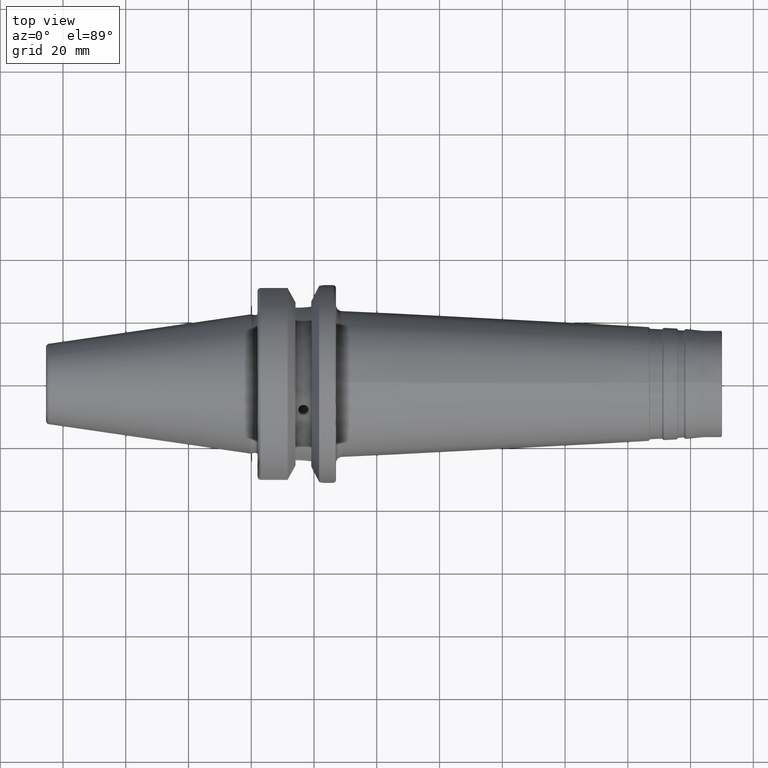
[diagram: clean part render]
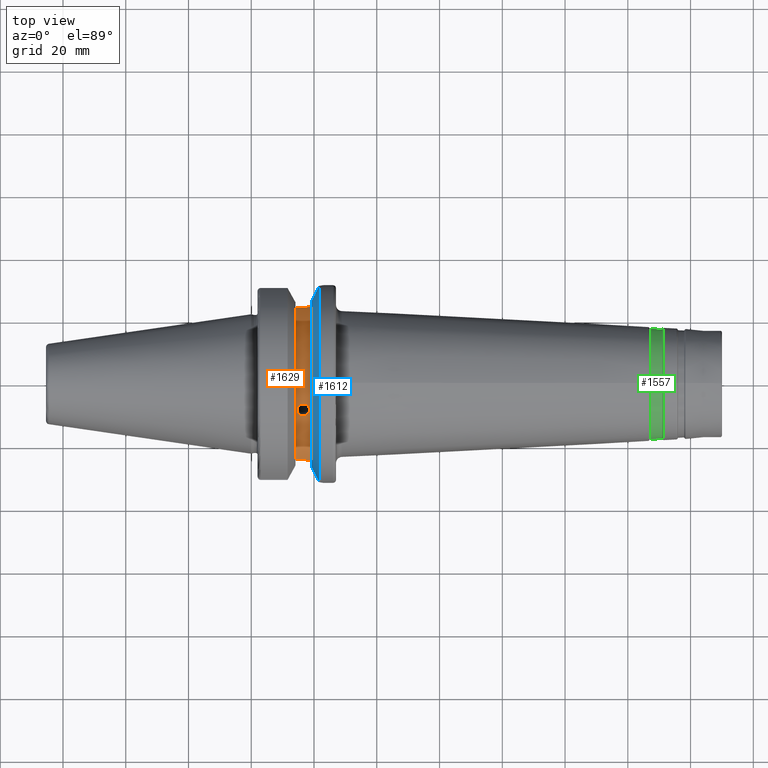
[diagram: same view with three faces highlighted in distinct colors, each labeled with its STEP entity id]
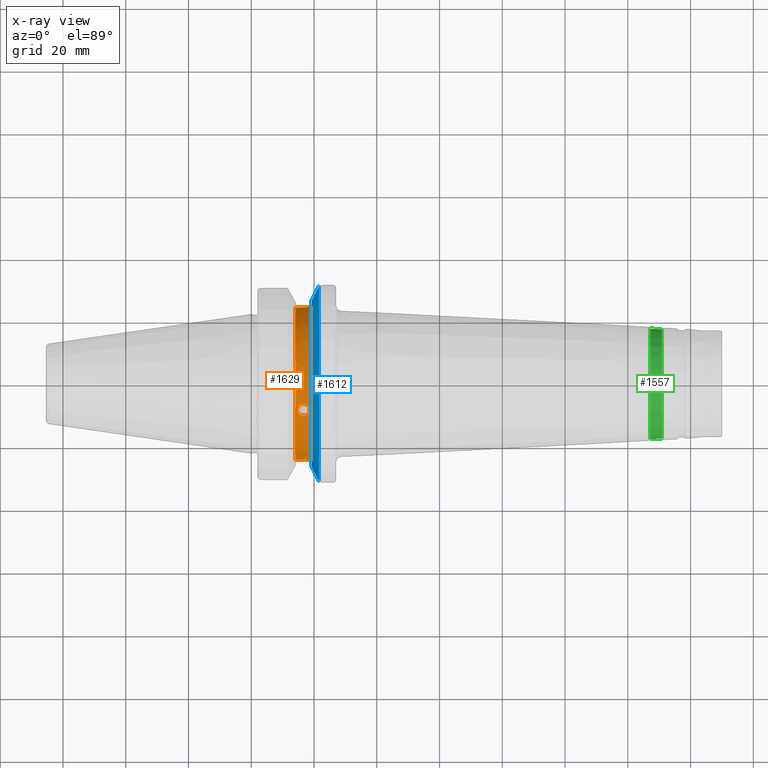
[diagram: x-ray of the same camera — body ghosted, the three highlighted faces saturated]
A machine part, top view with three faces highlighted in distinct colors.
The next image is the same camera in x-ray (body ghosted, the three faces saturated) — at least one of them is partly hidden behind the body in this view.
Their STEP definitions:

[orange] entity #1629 — the highlighted cylindrical surface (partial cylindrical patch) has radius 25.5 mm, axis along (1, 0, 0).
#110=FACE_BOUND('',#316,.T.);
#115=B_SPLINE_CURVE_WITH_KNOTS('',3,(#2716,#2717,#2718,#2719,#2720,#2721,
#2722,#2723,#2724,#2725,#2726,#2727,#2728,#2729,#2730,#2731,#2732,#2733,
#2734,#2735,#2736,#2737,#2738,#2739,#2740,#2741),.UNSPECIFIED.,.F.,.F.,
(4,2,2,2,2,2,2,2,2,2,2,2,4),(0.,0.0753706034311402,0.15074120686228,0.226111713565584,
0.301482220268888,0.376852726972193,0.452223233675497,0.527593837106637,
0.602964440537777,0.678335043968917,0.753705647400057,0.829076154103362,
0.904446660806666),.UNSPECIFIED.);
#116=B_SPLINE_CURVE_WITH_KNOTS('',3,(#2742,#2743,#2744,#2745,#2746,#2747,
#2748,#2749,#2750,#2751),.UNSPECIFIED.,.F.,.F.,(4,2,2,2,4),(0.904446660806666,
0.97981716750997,1.05518767421327,1.13055827764441,1.20592888107555),
 .UNSPECIFIED.);
#124=B_SPLINE_CURVE_WITH_KNOTS('',3,(#2919,#2920,#2921,#2922,#2923,#2924),
 .UNSPECIFIED.,.F.,.F.,(4,2,4),(0.,0.305559393991992,0.418764848000603),
 .UNSPECIFIED.);
#131=B_SPLINE_CURVE_WITH_KNOTS('',3,(#3063,#3064,#3065,#3066,#3067,#3068),
 .UNSPECIFIED.,.F.,.F.,(4,2,4),(-0.418764848000603,-0.305559393991992,0.),
 .UNSPECIFIED.);
#215=FACE_OUTER_BOUND('',#315,.T.);
#315=EDGE_LOOP('',(#1502,#1503,#1504,#1505,#1506,#1507));
#316=EDGE_LOOP('',(#1508,#1509));
#353=LINE('',#2932,#420);
#372=LINE('',#3079,#439);
#420=VECTOR('',#2245,10.);
#439=VECTOR('',#2314,10.);
#589=CIRCLE('',#1887,25.5);
#590=CIRCLE('',#1889,25.5);
#662=VERTEX_POINT('',#2713);
#663=VERTEX_POINT('',#2715);
#702=VERTEX_POINT('',#2916);
#703=VERTEX_POINT('',#2918);
#706=VERTEX_POINT('',#2931);
#733=VERTEX_POINT('',#3060);
#734=VERTEX_POINT('',#3062);
#736=VERTEX_POINT('',#3078);
#867=EDGE_CURVE('',#663,#662,#115,.T.);
#868=EDGE_CURVE('',#662,#663,#116,.T.);
#920=EDGE_CURVE('',#703,#702,#124,.T.);
#924=EDGE_CURVE('',#706,#703,#353,.T.);
#964=EDGE_CURVE('',#734,#733,#131,.T.);
#967=EDGE_CURVE('',#733,#736,#372,.T.);
#1016=EDGE_CURVE('',#736,#706,#589,.T.);
#1017=EDGE_CURVE('',#734,#702,#590,.T.);
#1502=ORIENTED_EDGE('',*,*,#920,.T.);
#1503=ORIENTED_EDGE('',*,*,#1017,.F.);
#1504=ORIENTED_EDGE('',*,*,#964,.T.);
#1505=ORIENTED_EDGE('',*,*,#967,.T.);
#1506=ORIENTED_EDGE('',*,*,#1016,.T.);
#1507=ORIENTED_EDGE('',*,*,#924,.T.);
#1508=ORIENTED_EDGE('',*,*,#867,.T.);
#1509=ORIENTED_EDGE('',*,*,#868,.T.);
#1547=CYLINDRICAL_SURFACE('',#1888,25.5);
#1629=ADVANCED_FACE('',(#215,#110),#1547,.T.);
#1887=AXIS2_PLACEMENT_3D('',#3189,#2432,#2433);
#1888=AXIS2_PLACEMENT_3D('',#3190,#2434,#2435);
#1889=AXIS2_PLACEMENT_3D('',#3191,#2436,#2437);
#2245=DIRECTION('',(1.,0.,0.));
#2314=DIRECTION('',(-1.,0.,0.));
#2432=DIRECTION('center_axis',(1.,0.,0.));
#2433=DIRECTION('ref_axis',(0.,0.,-1.));
#2434=DIRECTION('center_axis',(1.,0.,0.));
#2435=DIRECTION('ref_axis',(0.,1.,0.));
#2436=DIRECTION('center_axis',(1.,0.,0.));
#2437=DIRECTION('ref_axis',(0.,0.,-1.));
#2713=CARTESIAN_POINT('',(18.6,-8.72151365480455,23.9621618300407));
#2715=CARTESIAN_POINT('',(16.6,-10.5740324061887,23.2043064682587));
#2716=CARTESIAN_POINT('Ctrl Pts',(16.6,-10.5740324061887,23.2043064682587));
#2717=CARTESIAN_POINT('Ctrl Pts',(16.3487646552295,-10.5740324061887,23.2043064682587));
#2718=CARTESIAN_POINT('Ctrl Pts',(16.0808539398032,-10.5282360748462,23.2253464640325));
#2719=CARTESIAN_POINT('Ctrl Pts',(15.5881259002915,-10.341480204317,23.3091025219309));
#2720=CARTESIAN_POINT('Ctrl Pts',(15.3632997889944,-10.2004525041704,23.3716147691749));
#2721=CARTESIAN_POINT('Ctrl Pts',(15.0082733140735,-9.87358134491179,23.5115716095889));
#2722=CARTESIAN_POINT('Ctrl Pts',(14.8543700008966,-9.66590292532593,23.5983277097944));
#2723=CARTESIAN_POINT('Ctrl Pts',(14.6502304925719,-9.20795105223416,23.78075666331));
#2724=CARTESIAN_POINT('Ctrl Pts',(14.6,-8.95759735138451,23.87623439169));
#2725=CARTESIAN_POINT('Ctrl Pts',(14.6,-8.48542995822458,24.0480892683913));
#2726=CARTESIAN_POINT('Ctrl Pts',(14.6502304925719,-8.23227599607072,24.1358733420695));
#2727=CARTESIAN_POINT('Ctrl Pts',(14.8543700008966,-7.76420143750494,24.290490445821));
#2728=CARTESIAN_POINT('Ctrl Pts',(15.0082733140735,-7.54934479194869,24.357524532261));
#2729=CARTESIAN_POINT('Ctrl Pts',(15.3632997889944,-7.20898443387373,24.4604201035206));
#2730=CARTESIAN_POINT('Ctrl Pts',(15.5881259002915,-7.0607688498685,24.5031838021693));
#2731=CARTESIAN_POINT('Ctrl Pts',(16.0808539398032,-6.86386819677648,24.5590672990511));
#2732=CARTESIAN_POINT('Ctrl Pts',(16.3487646552295,-6.81526192304506,24.5723870415614));
#2733=CARTESIAN_POINT('Ctrl Pts',(16.8512353447705,-6.81526192304506,24.5723870415614));
#2734=CARTESIAN_POINT('Ctrl Pts',(17.1191460601968,-6.86386819677648,24.5590672990511));
#2735=CARTESIAN_POINT('Ctrl Pts',(17.6118740997085,-7.0607688498685,24.5031838021693));
#2736=CARTESIAN_POINT('Ctrl Pts',(17.8367002110056,-7.20898443387373,24.4604201035206));
#2737=CARTESIAN_POINT('Ctrl Pts',(18.1917266859265,-7.54934479194869,24.357524532261));
#2738=CARTESIAN_POINT('Ctrl Pts',(18.3456299991034,-7.76420143750494,24.290490445821));
#2739=CARTESIAN_POINT('Ctrl Pts',(18.5497695074281,-8.23227599607072,24.1358733420695));
#2740=CARTESIAN_POINT('Ctrl Pts',(18.6,-8.48542995822458,24.0480892683913));
#2741=CARTESIAN_POINT('Ctrl Pts',(18.6,-8.72151365480455,23.9621618300407));
#2742=CARTESIAN_POINT('Ctrl Pts',(18.6,-8.72151365480455,23.9621618300407));
#2743=CARTESIAN_POINT('Ctrl Pts',(18.6,-8.95759735138452,23.87623439169));
#2744=CARTESIAN_POINT('Ctrl Pts',(18.5497695074281,-9.20795105223416,23.78075666331));
#2745=CARTESIAN_POINT('Ctrl Pts',(18.3456299991034,-9.66590292532593,23.5983277097944));
#2746=CARTESIAN_POINT('Ctrl Pts',(18.1917266859265,-9.87358134491179,23.5115716095889));
#2747=CARTESIAN_POINT('Ctrl Pts',(17.8367002110056,-10.2004525041704,23.3716147691749));
#2748=CARTESIAN_POINT('Ctrl Pts',(17.6118740997085,-10.341480204317,23.3091025219309));
#2749=CARTESIAN_POINT('Ctrl Pts',(17.1191460601968,-10.5282360748462,23.2253464640325));
#2750=CARTESIAN_POINT('Ctrl Pts',(16.8512353447705,-10.5740324061887,23.2043064682587));
#2751=CARTESIAN_POINT('Ctrl Pts',(16.6,-10.5740324061887,23.2043064682587));
#2916=CARTESIAN_POINT('',(19.1,-24.5493380766162,6.89782574439221));
#2918=CARTESIAN_POINT('',(14.95,-24.1960224003864,8.05));
#2919=CARTESIAN_POINT('Ctrl Pts',(14.95,-24.1960224003864,8.05));
#2920=CARTESIAN_POINT('Ctrl Pts',(15.9685313133066,-24.1960224003864,8.05));
#2921=CARTESIAN_POINT('Ctrl Pts',(17.0497516664971,-24.2670783971366,7.84501312719341));
#2922=CARTESIAN_POINT('Ctrl Pts',(18.4072379028184,-24.4390565244262,7.28065599998141));
#2923=CARTESIAN_POINT('Ctrl Pts',(18.7625417379862,-24.492291659194,7.10085374759973));
#2924=CARTESIAN_POINT('Ctrl Pts',(19.1,-24.5493380766162,6.89782574439221));
#2931=CARTESIAN_POINT('',(14.1,-24.1960224003864,8.05));
#2932=CARTESIAN_POINT('',(16.6,-24.1960224003864,8.05));
#3060=CARTESIAN_POINT('',(14.95,24.1960224003864,8.05));
#3062=CARTESIAN_POINT('',(19.1,24.5493380766162,6.89782574439221));
#3063=CARTESIAN_POINT('Ctrl Pts',(19.1,24.5493380766162,6.89782574439221));
#3064=CARTESIAN_POINT('Ctrl Pts',(18.7625417379862,24.492291659194,7.10085374759973));
#3065=CARTESIAN_POINT('Ctrl Pts',(18.4072379028184,24.4390565244262,7.28065599998141));
#3066=CARTESIAN_POINT('Ctrl Pts',(17.0497516664971,24.2670783971366,7.84501312719341));
#3067=CARTESIAN_POINT('Ctrl Pts',(15.9685313133066,24.1960224003864,8.05));
#3068=CARTESIAN_POINT('Ctrl Pts',(14.95,24.1960224003864,8.05));
#3078=CARTESIAN_POINT('',(14.1,24.1960224003864,8.05));
#3079=CARTESIAN_POINT('',(16.6,24.1960224003864,8.05));
#3189=CARTESIAN_POINT('Origin',(14.1,0.,0.));
#3190=CARTESIAN_POINT('Origin',(16.6,0.,0.));
#3191=CARTESIAN_POINT('Origin',(19.1,0.,0.));

[blue] entity #1612 — the highlighted conical surface has half-angle 60.125 deg.
#89=CONICAL_SURFACE('',#1837,29.2970358274569,1.0493792127616);
#123=B_SPLINE_CURVE_WITH_KNOTS('',3,(#2910,#2911,#2912,#2913,#2914,#2915),
 .UNSPECIFIED.,.F.,.F.,(4,2,4),(1.46421027899559,1.54570476603972,2.04294020568399),
 .UNSPECIFIED.);
#132=B_SPLINE_CURVE_WITH_KNOTS('',3,(#3071,#3072,#3073,#3074,#3075,#3076),
 .UNSPECIFIED.,.F.,.F.,(4,2,4),(3.12975744792547,3.62699288756974,3.70848737461386),
 .UNSPECIFIED.);
#198=FACE_OUTER_BOUND('',#293,.T.);
#293=EDGE_LOOP('',(#1403,#1404,#1405,#1406));
#546=CIRCLE('',#1816,31.5);
#556=CIRCLE('',#1838,27.0940716549138);
#700=VERTEX_POINT('',#2902);
#701=VERTEX_POINT('',#2909);
#722=VERTEX_POINT('',#2991);
#735=VERTEX_POINT('',#3069);
#918=EDGE_CURVE('',#701,#700,#123,.T.);
#944=EDGE_CURVE('',#722,#700,#546,.T.);
#966=EDGE_CURVE('',#722,#735,#132,.T.);
#977=EDGE_CURVE('',#735,#701,#556,.T.);
#1403=ORIENTED_EDGE('',*,*,#918,.T.);
#1404=ORIENTED_EDGE('',*,*,#944,.F.);
#1405=ORIENTED_EDGE('',*,*,#966,.T.);
#1406=ORIENTED_EDGE('',*,*,#977,.T.);
#1612=ADVANCED_FACE('',(#198),#89,.T.);
#1816=AXIS2_PLACEMENT_3D('',#3002,#2269,#2270);
#1837=AXIS2_PLACEMENT_3D('',#3108,#2326,#2327);
#1838=AXIS2_PLACEMENT_3D('',#3109,#2328,#2329);
#2269=DIRECTION('center_axis',(1.,0.,0.));
#2270=DIRECTION('ref_axis',(0.,0.,-1.));
#2326=DIRECTION('center_axis',(1.,0.,0.));
#2327=DIRECTION('ref_axis',(0.,1.,0.));
#2328=DIRECTION('center_axis',(1.,0.,0.));
#2329=DIRECTION('ref_axis',(0.,0.,-1.));
#2902=CARTESIAN_POINT('',(21.6309636926618,-31.1782420264945,4.4907932637046));
#2909=CARTESIAN_POINT('',(19.1,-26.201311395455,6.89782574439221));
#2910=CARTESIAN_POINT('Ctrl Pts',(19.1,-26.201311395455,6.89782574439221));
#2911=CARTESIAN_POINT('Ctrl Pts',(19.2210929544554,-26.4384736933511,6.82497151762395));
#2912=CARTESIAN_POINT('Ctrl Pts',(19.3406963650697,-26.6728819297428,6.74867108656039));
#2913=CARTESIAN_POINT('Ctrl Pts',(20.1784155384866,-28.3157123387484,6.18231368976925));
#2914=CARTESIAN_POINT('Ctrl Pts',(20.9728756148303,-29.8797957262939,5.46983244373115));
#2915=CARTESIAN_POINT('Ctrl Pts',(21.6309636926618,-31.1782420264945,4.4907932637046));
#2991=CARTESIAN_POINT('',(21.6309636926618,31.1782420264945,4.4907932637046));
#3002=CARTESIAN_POINT('Origin',(21.6309636926618,0.,0.));
#3069=CARTESIAN_POINT('',(19.1,26.201311395455,6.89782574439221));
#3071=CARTESIAN_POINT('Ctrl Pts',(21.6309636926618,31.1782420264945,4.4907932637046));
#3072=CARTESIAN_POINT('Ctrl Pts',(20.9728756148303,29.8797957262939,5.46983244373114));
#3073=CARTESIAN_POINT('Ctrl Pts',(20.1784155384866,28.3157123387484,6.18231368976924));
#3074=CARTESIAN_POINT('Ctrl Pts',(19.3406963650697,26.6728819297428,6.74867108656039));
#3075=CARTESIAN_POINT('Ctrl Pts',(19.2210929544554,26.438473693351,6.82497151762395));
#3076=CARTESIAN_POINT('Ctrl Pts',(19.1,26.201311395455,6.89782574439221));
#3108=CARTESIAN_POINT('Origin',(20.3654818463309,0.,0.));
#3109=CARTESIAN_POINT('Origin',(19.1,0.,0.));

[green] entity #1557 — the highlighted conical surface has half-angle 3 deg.
#78=CONICAL_SURFACE('',#1687,17.599230784584,0.0523598775598291);
#143=FACE_OUTER_BOUND('',#229,.T.);
#229=EDGE_LOOP('',(#1076,#1077,#1078,#1079,#1080,#1081));
#325=LINE('',#2587,#392);
#392=VECTOR('',#1973,17.599230784584);
#474=CIRCLE('',#1682,17.5006021077832);
#478=CIRCLE('',#1686,17.5006021077832);
#479=CIRCLE('',#1688,17.6978594613849);
#480=CIRCLE('',#1689,17.6978594613849);
#615=VERTEX_POINT('',#2576);
#616=VERTEX_POINT('',#2577);
#619=VERTEX_POINT('',#2586);
#620=VERTEX_POINT('',#2588);
#799=EDGE_CURVE('',#615,#616,#474,.T.);
#803=EDGE_CURVE('',#616,#615,#478,.T.);
#804=EDGE_CURVE('',#616,#619,#325,.T.);
#805=EDGE_CURVE('',#620,#619,#479,.T.);
#806=EDGE_CURVE('',#619,#620,#480,.T.);
#1076=ORIENTED_EDGE('',*,*,#799,.F.);
#1077=ORIENTED_EDGE('',*,*,#803,.F.);
#1078=ORIENTED_EDGE('',*,*,#804,.T.);
#1079=ORIENTED_EDGE('',*,*,#805,.F.);
#1080=ORIENTED_EDGE('',*,*,#806,.F.);
#1081=ORIENTED_EDGE('',*,*,#804,.F.);
#1557=ADVANCED_FACE('',(#143),#78,.T.);
#1682=AXIS2_PLACEMENT_3D('',#2578,#1961,#1962);
#1686=AXIS2_PLACEMENT_3D('',#2584,#1969,#1970);
#1687=AXIS2_PLACEMENT_3D('',#2585,#1971,#1972);
#1688=AXIS2_PLACEMENT_3D('',#2589,#1974,#1975);
#1689=AXIS2_PLACEMENT_3D('',#2590,#1976,#1977);
#1961=DIRECTION('center_axis',(1.,0.,0.));
#1962=DIRECTION('ref_axis',(0.,1.4086317222876E-32,1.));
#1969=DIRECTION('center_axis',(1.,0.,0.));
#1970=DIRECTION('ref_axis',(0.,1.4086317222876E-32,1.));
#1971=DIRECTION('center_axis',(-1.,0.,0.));
#1972=DIRECTION('ref_axis',(0.,0.,-1.));
#1973=DIRECTION('',(-0.998629534754574,-6.40930612932362E-18,0.0523359562429431));
#1974=DIRECTION('center_axis',(-1.,0.,0.));
#1975=DIRECTION('ref_axis',(0.,-1.39293135093229E-32,1.));
#1976=DIRECTION('center_axis',(-1.,0.,0.));
#1977=DIRECTION('ref_axis',(0.,-1.39293135093229E-32,1.));
#2576=CARTESIAN_POINT('',(130.894281450576,-4.93038065763132E-31,-17.5006021077832));
#2577=CARTESIAN_POINT('',(130.894281450576,-2.14320563544481E-15,17.5006021077832));
#2578=CARTESIAN_POINT('Origin',(130.894281450576,-2.14320563544481E-15,
0.));
#2584=CARTESIAN_POINT('Origin',(130.894281450576,-2.14320563544481E-15,
0.));
#2585=CARTESIAN_POINT('Origin',(129.012334187209,0.,0.));
#2586=CARTESIAN_POINT('',(127.130386923842,-2.16736269411447E-15,17.6978594613849));
#2587=CARTESIAN_POINT('',(129.012334187209,-2.15528416477964E-15,17.599230784584));
#2588=CARTESIAN_POINT('',(127.130386923842,-4.33472538822894E-15,-17.6978594613849));
#2589=CARTESIAN_POINT('Origin',(127.130386923842,-2.16736269411447E-15,
0.));
#2590=CARTESIAN_POINT('Origin',(127.130386923842,-2.16736269411447E-15,
0.));